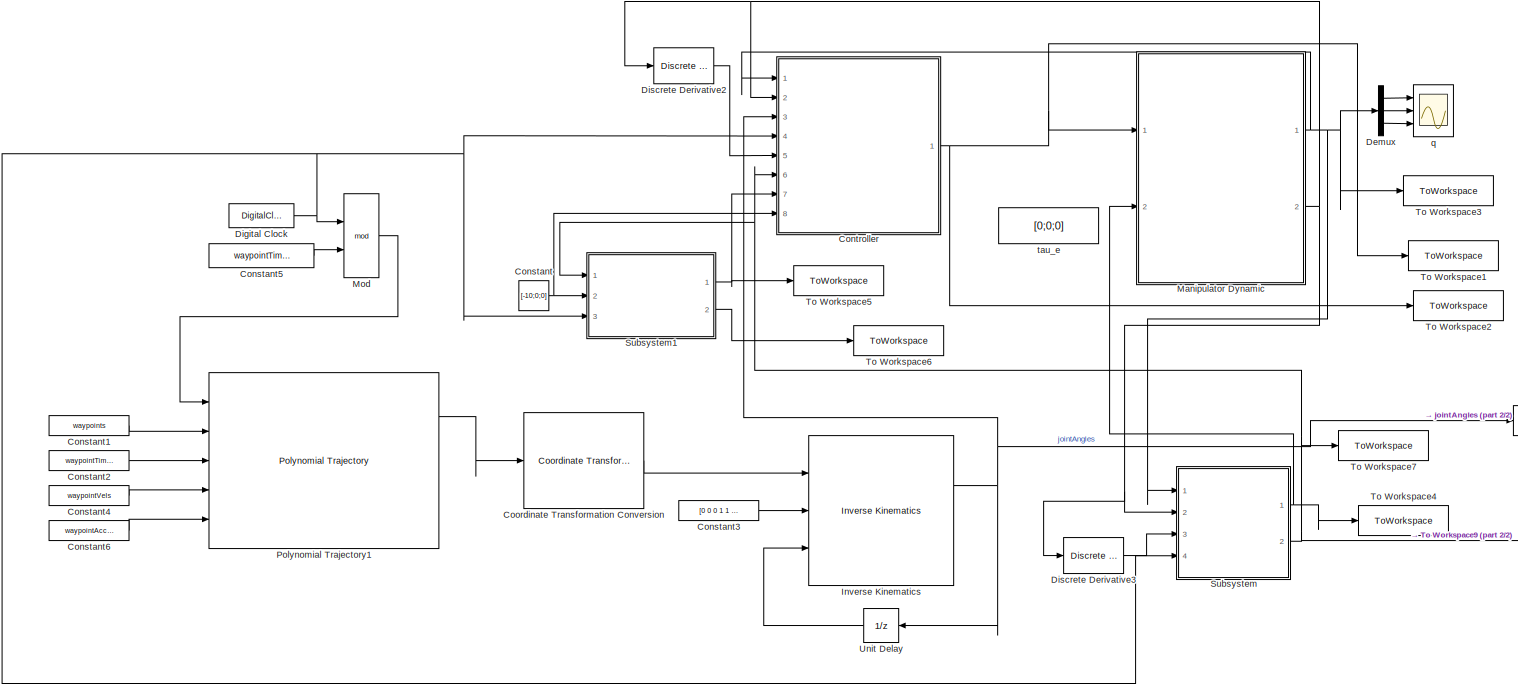
[diagram: root canvas - part 1/2, most of the canvas]
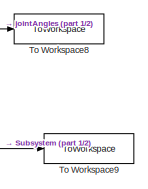
[diagram: root canvas - part 2/2, bottom right region]
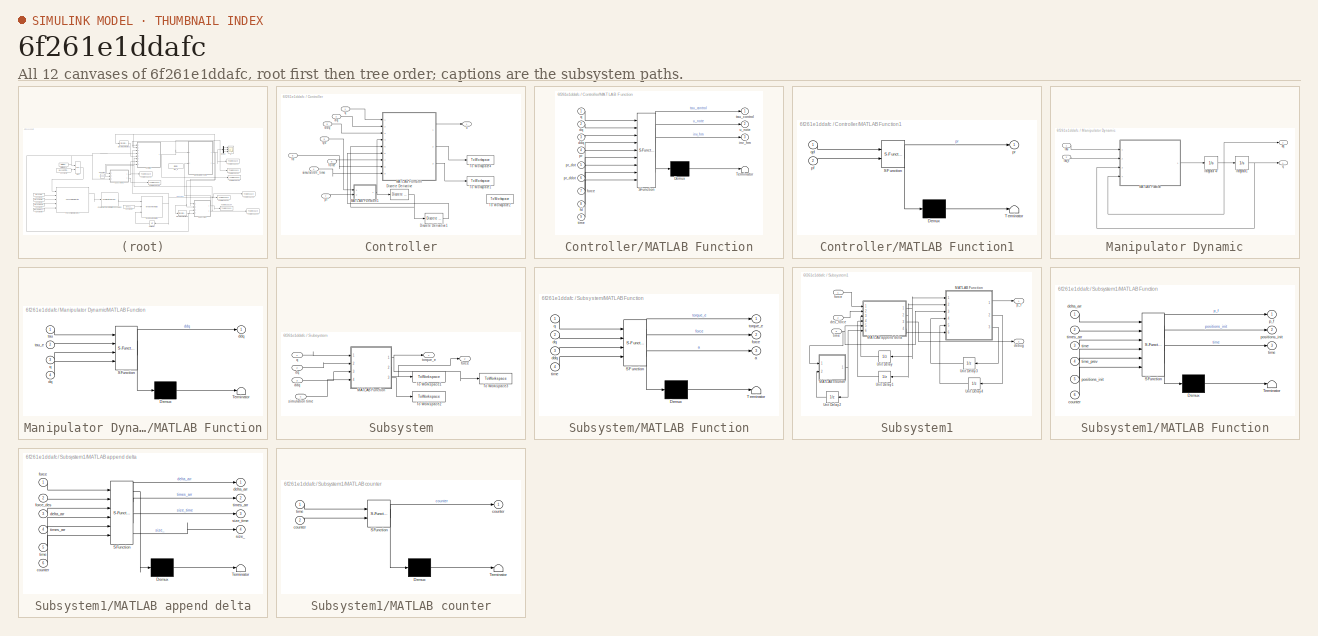
[diagram: thumbnail index - all 12 canvases of the model, root first then tree order]
MODEL slx_6f261e1ddafc
KIND model
CONFIG AbsTol = auto
CONFIG EnableMultiTasking = off
CONFIG FixedStep = dt
CONFIG MaxStep = auto
CONFIG MinStep = auto
CONFIG RelTol = 1e-3
CONFIG SampleTimeConstraint = Unconstrained
CONFIG SolverName = FixedStepAuto
CONFIG StartTime = 0.0
CONFIG StopTime = t_final
BLOCK [Constant] Constant
  Value = [-10;0;0]
BLOCK [Constant] Constant1
  SampleTime = -1
  Value = waypoints
  VectorParams1D = off
BLOCK [Constant] Constant2
  SampleTime = -1
  Value = waypointTimes'
  VectorParams1D = off
BLOCK [Constant] Constant3
  Value = [0 0 0 1 1 1]
  VectorParams1D = off
BLOCK [Constant] Constant4
  SampleTime = -1
  Value = waypointVels
  VectorParams1D = off
BLOCK [Constant] Constant5
  Value = waypointTimes(end)
BLOCK [Constant] Constant6
  SampleTime = -1
  Value = waypointAccels
  VectorParams1D = off
BLOCK [SubSystem] Controller
  Ports = [8, 1]
  RequestExecContextInheritance = off
BLOCK [Reference] Controller/Discrete Derivative  REF=simulink/Discrete/Discrete Derivative
  Ports = [1, 1]
  SourceBlock = simulink/Discrete/Discrete Derivative
  SourceProductBaseCode = SL
  SourceType = Discrete Derivative
BLOCK [Reference] Controller/Discrete Derivative1  REF=simulink/Discrete/Discrete Derivative
  Ports = [1, 1]
  SourceBlock = simulink/Discrete/Discrete Derivative
  SourceProductBaseCode = SL
  SourceType = Discrete Derivative
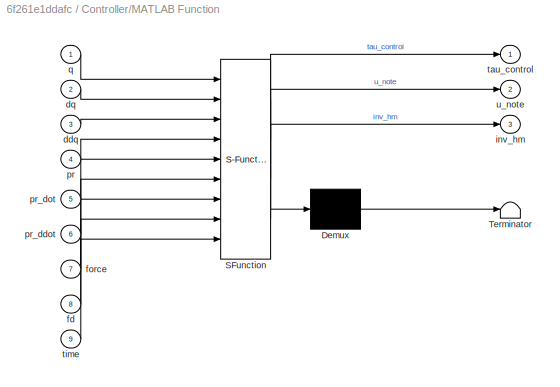
BLOCK [SubSystem] Controller/MATLAB Function
  ErrorFcn = Stateflow.Translate.translate
  PermitHierarchicalResolution = ExplicitOnly
  Ports = [9, 3]
  RequestExecContextInheritance = off
  SFBlockType = MATLAB Function
  TreatAsAtomicUnit = on
BLOCK [Demux] Controller/MATLAB Function/ Demux 
  Outputs = 1
  Ports = [1, 1]
BLOCK [S-Function] Controller/MATLAB Function/ SFunction 
  EnableBusSupport = on
  FunctionName = sf_sfun
  PortCounts = [9 4]
  Ports = [9, 4]
  SFcnIsStateOwnerBlock = off
  SFunctionDeploymentMode = off
  Tag = Stateflow S-Function 1
BLOCK [Terminator] Controller/MATLAB Function/ Terminator 
BLOCK [Inport] Controller/MATLAB Function/ddq
  Port = 3
BLOCK [Inport] Controller/MATLAB Function/dq
  Port = 2
BLOCK [Inport] Controller/MATLAB Function/fd
  Port = 8
BLOCK [Inport] Controller/MATLAB Function/force
  Port = 7
BLOCK [Outport] Controller/MATLAB Function/inv_hm
  Port = 3
BLOCK [Inport] Controller/MATLAB Function/pr
  Port = 4
BLOCK [Inport] Controller/MATLAB Function/pr_ddot
  Port = 6
BLOCK [Inport] Controller/MATLAB Function/pr_dot
  Port = 5
BLOCK [Inport] Controller/MATLAB Function/q
BLOCK [Outport] Controller/MATLAB Function/tau_control
BLOCK [Inport] Controller/MATLAB Function/time
  Port = 9
BLOCK [Outport] Controller/MATLAB Function/u_note
  Port = 2
BLOCK [SubSystem] Controller/MATLAB Function1
  ErrorFcn = Stateflow.Translate.translate
  PermitHierarchicalResolution = ExplicitOnly
  Ports = [2, 1]
  RequestExecContextInheritance = off
  SFBlockType = MATLAB Function
  TreatAsAtomicUnit = on
BLOCK [Demux] Controller/MATLAB Function1/ Demux 
  Outputs = 1
  Ports = [1, 1]
BLOCK [S-Function] Controller/MATLAB Function1/ SFunction 
  EnableBusSupport = on
  FunctionName = sf_sfun
  PortCounts = [2 2]
  Ports = [2, 2]
  SFcnIsStateOwnerBlock = off
  SFunctionDeploymentMode = off
  Tag = Stateflow S-Function 7
BLOCK [Terminator] Controller/MATLAB Function1/ Terminator 
BLOCK [Inport] Controller/MATLAB Function1/pf
  Port = 2
BLOCK [Outport] Controller/MATLAB Function1/pr
BLOCK [Inport] Controller/MATLAB Function1/qd
BLOCK [ToWorkspace] Controller/To Workspace1
  FixptAsFi = on
  MaxDataPoints = inf
  Ports = [1]
  SampleTime = -1
  SaveFormat = Timeseries
  VariableName = u_note1
BLOCK [ToWorkspace] Controller/To Workspace2
  FixptAsFi = on
  MaxDataPoints = inf
  Ports = [1]
  SampleTime = -1
  SaveFormat = Timeseries
  VariableName = u_note2
BLOCK [ToWorkspace] Controller/To Workspace4
  FixptAsFi = on
  MaxDataPoints = inf
  Ports = [1]
  SampleTime = -1
  SaveFormat = Timeseries
  VariableName = u_note
BLOCK [Inport] Controller/ddq
  Port = 5
BLOCK [Inport] Controller/dq
  Port = 2
BLOCK [Inport] Controller/fd
  Port = 8
BLOCK [Inport] Controller/force
  Port = 6
BLOCK [Inport] Controller/pf
  Port = 7
BLOCK [Inport] Controller/q
BLOCK [Inport] Controller/qd
  Port = 3
BLOCK [Inport] Controller/simulation_time
  Port = 4
BLOCK [Outport] Controller/u
BLOCK [Reference] Coordinate Transformation Conversion  REF=robotcorelib/Coordinate Transformation Conversion
  Ports = [1, 1]
  SourceBlock = robotcorelib/Coordinate Transformation Conversion
  SourceProductBaseCode = NV,RO,RR,UV
  SourceType = robotics.slcore.internal.block.CoordinateTransformationConversion
BLOCK [Demux] Demux
  Outputs = 3
  Ports = [1, 3]
BLOCK [DigitalClock] Digital Clock
  SampleTime = dt
BLOCK [Reference] Discrete Derivative2  REF=simulink/Discrete/Discrete Derivative
  Ports = [1, 1]
  SourceBlock = simulink/Discrete/Discrete Derivative
  SourceProductBaseCode = SL
  SourceType = Discrete Derivative
BLOCK [Reference] Discrete Derivative3  REF=simulink/Discrete/Discrete Derivative
  Ports = [1, 1]
  SourceBlock = simulink/Discrete/Discrete Derivative
  SourceProductBaseCode = SL
  SourceType = Discrete Derivative
BLOCK [Reference] Inverse Kinematics  REF=robotmaniplib/Inverse Kinematics
  Ports = [3, 2]
  SourceBlock = robotmaniplib/Inverse Kinematics
  SourceProductBaseCode = RO
  SourceType = Inverse Kinematics
BLOCK [SubSystem] Manipulator Dynamic
  Ports = [2, 2]
  RequestExecContextInheritance = off
BLOCK [Integrator] Manipulator Dynamic/Integrator 47
  InitialCondition = dq_0
  Ports = [1, 1]
BLOCK [Integrator] Manipulator Dynamic/Integrator1
  InitialCondition = q_0
  Ports = [1, 1]
BLOCK [SubSystem] Manipulator Dynamic/MATLAB Function
  ErrorFcn = Stateflow.Translate.translate
  PermitHierarchicalResolution = ExplicitOnly
  Ports = [4, 1]
  RequestExecContextInheritance = off
  SFBlockType = MATLAB Function
  TreatAsAtomicUnit = on
BLOCK [Demux] Manipulator Dynamic/MATLAB Function/ Demux 
  Outputs = 1
  Ports = [1, 1]
BLOCK [S-Function] Manipulator Dynamic/MATLAB Function/ SFunction 
  EnableBusSupport = on
  FunctionName = sf_sfun
  PortCounts = [4 2]
  Ports = [4, 2]
  SFcnIsStateOwnerBlock = off
  SFunctionDeploymentMode = off
  Tag = Stateflow S-Function 2
BLOCK [Terminator] Manipulator Dynamic/MATLAB Function/ Terminator 
BLOCK [Outport] Manipulator Dynamic/MATLAB Function/ddq
BLOCK [Inport] Manipulator Dynamic/MATLAB Function/dq
  Port = 4
BLOCK [Inport] Manipulator Dynamic/MATLAB Function/q
  Port = 3
BLOCK [Inport] Manipulator Dynamic/MATLAB Function/tau
BLOCK [Inport] Manipulator Dynamic/MATLAB Function/tau_e
  Port = 2
BLOCK [Outport] Manipulator Dynamic/dq
  Port = 2
BLOCK [Outport] Manipulator Dynamic/q
BLOCK [Inport] Manipulator Dynamic/tau
BLOCK [Inport] Manipulator Dynamic/tau_e
  Port = 2
BLOCK [Math] Mod
  Operator = mod
  Ports = [2, 1]
  SignedPower = on
BLOCK [Reference] Polynomial Trajectory1  REF=robotcorelib/Polynomial Trajectory
  Ports = [5, 3]
  SourceBlock = robotcorelib/Polynomial Trajectory
  SourceProductBaseCode = NV,RO,RR,UV
  SourceType = robotics.slcore.internal.block.PolyTrajSys
BLOCK [SubSystem] Subsystem
  Ports = [4, 2]
  RequestExecContextInheritance = off
BLOCK [SubSystem] Subsystem/MATLAB Function
  ErrorFcn = Stateflow.Translate.translate
  PermitHierarchicalResolution = ExplicitOnly
  Ports = [4, 3]
  RequestExecContextInheritance = off
  SFBlockType = MATLAB Function
  TreatAsAtomicUnit = on
BLOCK [Demux] Subsystem/MATLAB Function/ Demux 
  Outputs = 1
  Ports = [1, 1]
BLOCK [S-Function] Subsystem/MATLAB Function/ SFunction 
  EnableBusSupport = on
  FunctionName = sf_sfun
  PortCounts = [4 4]
  Ports = [4, 4]
  SFcnIsStateOwnerBlock = off
  SFunctionDeploymentMode = off
  Tag = Stateflow S-Function 3
BLOCK [Terminator] Subsystem/MATLAB Function/ Terminator 
BLOCK [Outport] Subsystem/MATLAB Function/a
  Port = 3
BLOCK [Inport] Subsystem/MATLAB Function/ddq
  Port = 3
BLOCK [Inport] Subsystem/MATLAB Function/dq
  Port = 2
BLOCK [Outport] Subsystem/MATLAB Function/force
  Port = 2
BLOCK [Inport] Subsystem/MATLAB Function/q
BLOCK [Inport] Subsystem/MATLAB Function/time
  Port = 4
BLOCK [Outport] Subsystem/MATLAB Function/torque_e
BLOCK [ToWorkspace] Subsystem/To Workspace1
  FixptAsFi = on
  MaxDataPoints = inf
  Ports = [1]
  SampleTime = -1
  SaveFormat = Timeseries
  VariableName = force
BLOCK [ToWorkspace] Subsystem/To Workspace2
  FixptAsFi = on
  MaxDataPoints = inf
  Ports = [1]
  SampleTime = -1
  SaveFormat = Timeseries
  VariableName = acc1
BLOCK [ToWorkspace] Subsystem/To Workspace3
  FixptAsFi = on
  MaxDataPoints = inf
  Ports = [1]
  SampleTime = -1
  SaveFormat = Timeseries
  VariableName = torque
BLOCK [Inport] Subsystem/ddq
  Port = 3
BLOCK [Inport] Subsystem/dq
  Port = 2
BLOCK [Outport] Subsystem/force
  Port = 2
BLOCK [Inport] Subsystem/q
BLOCK [Inport] Subsystem/simulation time
  Port = 4
BLOCK [Outport] Subsystem/torque_e
BLOCK [SubSystem] Subsystem1
  Ports = [3, 2]
  RequestExecContextInheritance = off
BLOCK [SubSystem] Subsystem1/MATLAB Function
  ErrorFcn = Stateflow.Translate.translate
  PermitHierarchicalResolution = ExplicitOnly
  Ports = [6, 3]
  RequestExecContextInheritance = off
  SFBlockType = MATLAB Function
  TreatAsAtomicUnit = on
BLOCK [Demux] Subsystem1/MATLAB Function/ Demux 
  Outputs = 1
  Ports = [1, 1]
BLOCK [S-Function] Subsystem1/MATLAB Function/ SFunction 
  EnableBusSupport = on
  FunctionName = sf_sfun
  PortCounts = [6 4]
  Ports = [6, 4]
  SFcnIsStateOwnerBlock = off
  SFunctionDeploymentMode = off
  Tag = Stateflow S-Function 4
BLOCK [Terminator] Subsystem1/MATLAB Function/ Terminator 
BLOCK [Inport] Subsystem1/MATLAB Function/counter
  Port = 6
BLOCK [Inport] Subsystem1/MATLAB Function/delta_arr
BLOCK [Outport] Subsystem1/MATLAB Function/p_f
BLOCK [Outport] Subsystem1/MATLAB Function/positions_init
  Port = 2
BLOCK [Inport] Subsystem1/MATLAB Function/positions_init 
  Port = 5
BLOCK [Outport] Subsystem1/MATLAB Function/time
  Port = 3
BLOCK [Inport] Subsystem1/MATLAB Function/time 
  Port = 3
BLOCK [Inport] Subsystem1/MATLAB Function/time_prev
  Port = 4
BLOCK [Inport] Subsystem1/MATLAB Function/times_arr
  Port = 2
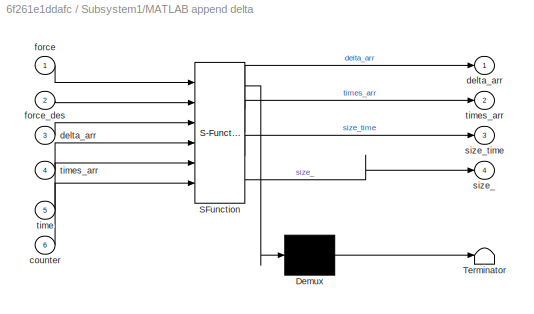
BLOCK [SubSystem] Subsystem1/MATLAB append delta
  ErrorFcn = Stateflow.Translate.translate
  PermitHierarchicalResolution = ExplicitOnly
  Ports = [6, 4]
  RequestExecContextInheritance = off
  SFBlockType = MATLAB Function
  TreatAsAtomicUnit = on
BLOCK [Demux] Subsystem1/MATLAB append delta/ Demux 
  Outputs = 1
  Ports = [1, 1]
BLOCK [S-Function] Subsystem1/MATLAB append delta/ SFunction 
  EnableBusSupport = on
  FunctionName = sf_sfun
  PortCounts = [6 5]
  Ports = [6, 5]
  SFcnIsStateOwnerBlock = off
  SFunctionDeploymentMode = off
  Tag = Stateflow S-Function 5
BLOCK [Terminator] Subsystem1/MATLAB append delta/ Terminator 
BLOCK [Inport] Subsystem1/MATLAB append delta/counter
  Port = 6
BLOCK [Outport] Subsystem1/MATLAB append delta/delta_arr
BLOCK [Inport] Subsystem1/MATLAB append delta/delta_arr 
  Port = 3
BLOCK [Inport] Subsystem1/MATLAB append delta/force
BLOCK [Inport] Subsystem1/MATLAB append delta/force_des
  Port = 2
BLOCK [Outport] Subsystem1/MATLAB append delta/size_
  Port = 4
BLOCK [Outport] Subsystem1/MATLAB append delta/size_time
  Port = 3
BLOCK [Inport] Subsystem1/MATLAB append delta/time
  Port = 5
BLOCK [Outport] Subsystem1/MATLAB append delta/times_arr
  Port = 2
BLOCK [Inport] Subsystem1/MATLAB append delta/times_arr 
  Port = 4
BLOCK [SubSystem] Subsystem1/MATLAB counter
  ErrorFcn = Stateflow.Translate.translate
  PermitHierarchicalResolution = ExplicitOnly
  Ports = [2, 1]
  RequestExecContextInheritance = off
  SFBlockType = MATLAB Function
  TreatAsAtomicUnit = on
BLOCK [Demux] Subsystem1/MATLAB counter/ Demux 
  Outputs = 1
  Ports = [1, 1]
BLOCK [S-Function] Subsystem1/MATLAB counter/ SFunction 
  EnableBusSupport = on
  FunctionName = sf_sfun
  PortCounts = [2 2]
  Ports = [2, 2]
  SFcnIsStateOwnerBlock = off
  SFunctionDeploymentMode = off
  Tag = Stateflow S-Function 6
BLOCK [Terminator] Subsystem1/MATLAB counter/ Terminator 
BLOCK [Outport] Subsystem1/MATLAB counter/counter
BLOCK [Inport] Subsystem1/MATLAB counter/counter 
  Port = 2
BLOCK [Inport] Subsystem1/MATLAB counter/time
BLOCK [UnitDelay] Subsystem1/Unit Delay
  HasFrameUpgradeWarning = on
  InitialCondition = delta_arr
  SampleTime = -1
BLOCK [UnitDelay] Subsystem1/Unit Delay1
  HasFrameUpgradeWarning = on
  InitialCondition = times_arr
  SampleTime = -1
BLOCK [UnitDelay] Subsystem1/Unit Delay2
  HasFrameUpgradeWarning = on
  SampleTime = -1
BLOCK [UnitDelay] Subsystem1/Unit Delay3
  HasFrameUpgradeWarning = on
  SampleTime = -1
BLOCK [UnitDelay] Subsystem1/Unit Delay4
  HasFrameUpgradeWarning = on
  InitialCondition = [0 0 0 0 0 0]'
  SampleTime = -1
BLOCK [Outport] Subsystem1/debug
  Port = 2
BLOCK [Inport] Subsystem1/des_force
  Port = 2
BLOCK [Inport] Subsystem1/force
BLOCK [Outport] Subsystem1/p_f
BLOCK [Inport] Subsystem1/time
  Port = 3
BLOCK [ToWorkspace] To Workspace1
  FixptAsFi = on
  MaxDataPoints = inf
  Ports = [1]
  SampleTime = -1
  SaveFormat = Timeseries
  VariableName = control1
BLOCK [ToWorkspace] To Workspace2
  FixptAsFi = on
  MaxDataPoints = inf
  Ports = [1]
  SampleTime = -1
  SaveFormat = Timeseries
  VariableName = control
BLOCK [ToWorkspace] To Workspace3
  FixptAsFi = on
  MaxDataPoints = inf
  Ports = [1]
  SampleTime = -1
  SaveFormat = Timeseries
  VariableName = configReal
BLOCK [ToWorkspace] To Workspace4
  FixptAsFi = on
  MaxDataPoints = inf
  Ports = [1]
  SampleTime = -1
  SaveFormat = Timeseries
  VariableName = torque_e
BLOCK [ToWorkspace] To Workspace5
  FixptAsFi = on
  MaxDataPoints = inf
  Ports = [1]
  SampleTime = -1
  SaveFormat = Timeseries
  VariableName = p_f
BLOCK [ToWorkspace] To Workspace6
  FixptAsFi = on
  MaxDataPoints = inf
  Ports = [1]
  SampleTime = -1
  SaveFormat = Timeseries
  VariableName = debug
BLOCK [ToWorkspace] To Workspace7
  FixptAsFi = on
  MaxDataPoints = inf
  Ports = [1]
  SampleTime = -1
  SaveFormat = Timeseries
  VariableName = debug1
BLOCK [ToWorkspace] To Workspace8
  FixptAsFi = on
  MaxDataPoints = inf
  Ports = [1]
  SampleTime = -1
  SaveFormat = Timeseries
  VariableName = configDes
BLOCK [ToWorkspace] To Workspace9
  FixptAsFi = on
  MaxDataPoints = inf
  Ports = [1]
  SampleTime = -1
  SaveFormat = Timeseries
  VariableName = forceReal
BLOCK [UnitDelay] Unit Delay
  HasFrameUpgradeWarning = on
  InitialCondition = ikInitGuessSim
  SampleTime = -1
BLOCK [Scope] q
  Floating = off
  NumInputPorts = 3
  Ports = [3]
  ScopeSpecificationString = Simulink.scopes.TimeScopeBlockCfg('CurrentConfiguration', extmgr.ConfigurationSet(extmgr.Configuration('Core','General UI',true),extmgr.Configuration('Core','Source UI',true),extmgr.Configuration('Sources','WiredSimulink',true),extmgr.Configuration('Visuals','Time Domain',true,'SerializedDisplays',{struct('MinYLimReal','-1.3771','MaxYLimReal','3.15303','YLabelReal','','MinYLimMag','0.00000','MaxYL...<+1418ch>
BLOCK [Constant] tau_e
  Value = [0;0;0]
LINE Constant1:1 -> Polynomial Trajectory1:2
LINE Constant2:1 -> Polynomial Trajectory1:3
LINE Constant3:1 -> Inverse Kinematics:2
LINE Constant4:1 -> Polynomial Trajectory1:4
LINE Constant5:1 -> Mod:2
LINE Constant6:1 -> Polynomial Trajectory1:5
NET Constant:1 -> Controller:8, Subsystem1:2
LINE Controller/Discrete Derivative1:1 -> Controller/MATLAB Function:6
NET Controller/Discrete Derivative:1 -> Controller/Discrete Derivative1:1, Controller/MATLAB Function:5
NET Controller/MATLAB Function1:1 -> Controller/Discrete Derivative:1, Controller/MATLAB Function:4
LINE Controller/MATLAB Function:1 -> Controller/u:1
LINE Controller/MATLAB Function:2 -> Controller/To Workspace4:1
LINE Controller/MATLAB Function:3 -> Controller/To Workspace1:1
LINE Controller/ddq:1 -> Controller/MATLAB Function:3
LINE Controller/dq:1 -> Controller/MATLAB Function:2
LINE Controller/fd:1 -> Controller/MATLAB Function:8
LINE Controller/force:1 -> Controller/MATLAB Function:7
LINE Controller/pf:1 -> Controller/MATLAB Function1:2
LINE Controller/q:1 -> Controller/MATLAB Function:1
LINE Controller/qd:1 -> Controller/MATLAB Function1:1
LINE Controller/simulation_time:1 -> Controller/MATLAB Function:9
NET Controller:1 -> Manipulator Dynamic:1, To Workspace1:1, To Workspace2:1
LINE Coordinate Transformation Conversion:1 -> Inverse Kinematics:1
LINE Demux:1 -> q:1
LINE Demux:2 -> q:2
LINE Demux:3 -> q:3
NET Digital Clock:1 -> Controller:4, Mod:1, Subsystem1:3, Subsystem:4
LINE Discrete Derivative2:1 -> Controller:5
LINE Discrete Derivative3:1 -> Subsystem:3
NET Inverse Kinematics:1 -> Controller:3, To Workspace8:1, Unit Delay:1
NET Manipulator Dynamic/Integrator 47:1 -> Manipulator Dynamic/Integrator1:1, Manipulator Dynamic/MATLAB Function:4, Manipulator Dynamic/dq:1
NET Manipulator Dynamic/Integrator1:1 -> Manipulator Dynamic/MATLAB Function:3, Manipulator Dynamic/q:1
LINE Manipulator Dynamic/MATLAB Function:1 -> Manipulator Dynamic/Integrator 47:1
LINE Manipulator Dynamic/tau:1 -> Manipulator Dynamic/MATLAB Function:1
LINE Manipulator Dynamic/tau_e:1 -> Manipulator Dynamic/MATLAB Function:2
NET Manipulator Dynamic:1 -> Controller:1, Demux:1, Subsystem:1, To Workspace3:1
NET Manipulator Dynamic:2 -> Controller:2, Discrete Derivative2:1, Discrete Derivative3:1, Subsystem:2
LINE Mod:1 -> Polynomial Trajectory1:1
LINE Polynomial Trajectory1:1 -> Coordinate Transformation Conversion:1
NET Subsystem/MATLAB Function:1 -> Subsystem/To Workspace3:1, Subsystem/torque_e:1
NET Subsystem/MATLAB Function:2 -> Subsystem/To Workspace1:1, Subsystem/force:1
LINE Subsystem/MATLAB Function:3 -> Subsystem/To Workspace2:1
LINE Subsystem/ddq:1 -> Subsystem/MATLAB Function:3
LINE Subsystem/dq:1 -> Subsystem/MATLAB Function:2
LINE Subsystem/q:1 -> Subsystem/MATLAB Function:1
LINE Subsystem/simulation time:1 -> Subsystem/MATLAB Function:4
LINE Subsystem1/MATLAB Function:1 -> Subsystem1/p_f:1
LINE Subsystem1/MATLAB Function:2 -> Subsystem1/Unit Delay4:1
LINE Subsystem1/MATLAB Function:3 -> Subsystem1/Unit Delay3:1
NET Subsystem1/MATLAB append delta:1 -> Subsystem1/MATLAB Function:1, Subsystem1/Unit Delay:1
NET Subsystem1/MATLAB append delta:2 -> Subsystem1/MATLAB Function:2, Subsystem1/Unit Delay1:1
LINE Subsystem1/MATLAB append delta:3 -> Subsystem1/debug:1
LINE Subsystem1/MATLAB append delta:4 -> Subsystem1/MATLAB Function:6
NET Subsystem1/MATLAB counter:1 -> Subsystem1/MATLAB append delta:6, Subsystem1/Unit Delay2:1
LINE Subsystem1/Unit Delay1:1 -> Subsystem1/MATLAB append delta:4
LINE Subsystem1/Unit Delay2:1 -> Subsystem1/MATLAB counter:2
LINE Subsystem1/Unit Delay3:1 -> Subsystem1/MATLAB Function:4
LINE Subsystem1/Unit Delay4:1 -> Subsystem1/MATLAB Function:5
LINE Subsystem1/Unit Delay:1 -> Subsystem1/MATLAB append delta:3
LINE Subsystem1/des_force:1 -> Subsystem1/MATLAB append delta:2
LINE Subsystem1/force:1 -> Subsystem1/MATLAB append delta:1
NET Subsystem1/time:1 -> Subsystem1/MATLAB Function:3, Subsystem1/MATLAB append delta:5, Subsystem1/MATLAB counter:1
NET Subsystem1:1 -> Controller:7, To Workspace5:1
LINE Subsystem1:2 -> To Workspace6:1
NET Subsystem:1 -> Manipulator Dynamic:2, To Workspace4:1
NET Subsystem:2 -> Controller:6, Subsystem1:1, To Workspace7:1, To Workspace9:1
LINE Unit Delay:1 -> Inverse Kinematics:3
note: NET lines group one-source signal fan-out (src -> all destinations, sorted); 1:1 wires keep LINE
CHART Controller/MATLAB Function1 states=1 transitions=1
  STATE_LABEL 'eML_blk_kernel()'
  STATE_LABEL "SCRIPT:\nfunction pr  = fcn(qd, pf)\n\npd = fwdKin(qd);\n\npr = pd + pf';\n\nfunction [X] = fwdKin(Q)\n    s1 = sin(Q(1, :));\n    c1 = cos(Q(1, :));\n    s2 = sin(Q(2, :));\n    c2 = cos(Q(2, :));\n    s23 = sin(Q(2, :) + Q(3, :));\n    c23 = cos(Q(2, :) + Q(3, :));\n    l = [0.6731; 0.432; 0.434];\n    \n    X = zeros(3,1);\n    X(1, :) = c1.*(l(2)*c2 + l(3)*s23);\n    X(2, :) = s1.*(l(2)*c2 + l(3)*s23);\n    X(3,...<+35ch>"
CHART Controller/MATLAB Function states=1 transitions=1
  STATE_LABEL 'eML_blk_kernel()'
  STATE_LABEL 'SCRIPT:\nfunction [tau_control, u_note,inv_hm]  = fcn(q, dq, ddq, pr, pr_dot, pr_ddot,force,fd,...\n                                                                  time)\n% reset first qd_ddot\nif (time < 0.003)\n    qd_ddot = [0;0;0];\n    qd_dot = [0;0;0];\n    pr_dot = [0;0;0];\n    pr_ddot = [0;0;0];\n    ddq = [0;0;0];\nend\n\n\n%% Joint Space variables\n\nq1 = q(1);\nq2 = q(2);\nq3 = q(3);\n\ndq1 = dq(1);\ndq...<+3608ch>'
CHART Manipulator Dynamic/MATLAB Function states=1 transitions=1
  STATE_LABEL 'eML_blk_kernel()'
  STATE_LABEL 'SCRIPT:\nfunction ddq = DynamicModel( tau, tau_e, q, dq)\n%%%%%\n% 3-DOF Puma-560 Dynamic Model Function\n% H(q)* ddq + C(q) * dq + G = tau + tau_e\n% q is 3*1 vector of joint variables (radian)\n% H(q) is the inertia matrix\n% C(q) is the matrix of Coriolis and centrifugal forces\n% G(q) is  the vector of potential forces Parameters\n% tau is control torque \n% tau_e is the external torque due to the inter...<+1400ch>'
CHART Subsystem/MATLAB Function states=1 transitions=1
  STATE_LABEL 'eML_blk_kernel()'
  STATE_LABEL 'SCRIPT:\nfunction [torque_e,force,a]  = fcn(q,dq, ddq, time)\n\nif (time < 0.003)\n    ddq = [0;0;0];\nend\n\nJ = jacobian(q);\ndJ = dJacobian(q, dq);\n\npos = fwdKin(q);\nv = J * dq;\na = dJ * dq + J * ddq;\n\nM = [0 0 0; 0 0 0 ; 0 0 0];\nD = [0 0 0; 0 0 0 ; 0 0 0];\nK = [100 0 0; 0 0 0 ; 0 0 0];\n\nenv_nom = [0.691185378094064;0;0.912891515862273];\nenv_nom = env_nom - [0.05;0;0];\n%% calculate force\nforce = -(M*a ...<+1825ch>'
CHART Subsystem1/MATLAB Function states=1 transitions=1
  STATE_LABEL 'eML_blk_kernel()'
  STATE_LABEL 'SCRIPT:\nfunction [p_f, positions_init,time]   = fcn(delta_arr,times_arr, time, time_prev,positions_init,counter)\n\ndelta_arr_ = delta_arr(:,1:counter);\ntimes_arr_ = times_arr(1:counter);\n\nK_a = [1 0 0; 0 1 0; 0 0 1];\nK_v = [5 0 0; 0 5 0; 0 0 5];\n\nfunction dx = xSmooth(t, x)\n    delta_val = interpDelta(t);\n    dx = [x(4:6); inv(K_a)*(delta_val - K_v*x(4:6))];\nend\n\nif (counter ~= 1)\n    if (counter =...<+775ch>'
CHART Subsystem1/MATLAB append delta states=1 transitions=1
  STATE_LABEL 'eML_blk_kernel()'
  STATE_LABEL 'SCRIPT:\nfunction [delta_arr, times_arr,size_time, size_]  = fcn(force, force_des, delta_arr, times_arr, time, counter)\n\nsize_time = size(times_arr);\n\ndelta_arr(:,counter) = force - force_des;\ntimes_arr(counter) = time;\nsize_ = counter;'
CHART Subsystem1/MATLAB counter states=1 transitions=1
  STATE_LABEL 'eML_blk_kernel()'
  STATE_LABEL 'SCRIPT:\nfunction counter = fcn(time, counter)\n\ncounter = counter + 1;\n'
CHART  states=0 transitions=0
CHART  states=0 transitions=0
CHART  states=0 transitions=0
CHART  states=0 transitions=0
CHART  states=0 transitions=0
CHART  states=0 transitions=0
CHART  states=0 transitions=0
